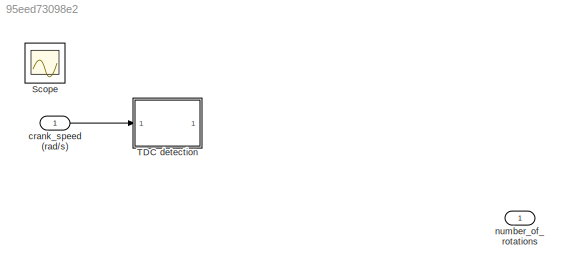
MODEL slx_95eed73098e2
KIND model
CONFIG AbsTol = auto
CONFIG EnableMultiTasking = on
CONFIG FixedStep = auto
CONFIG MaxStep = auto
CONFIG MinStep = auto
CONFIG PreLoadFcn = load crankSpeedData
CONFIG RelTol = 1e-3
CONFIG SampleTimeConstraint = Unconstrained
CONFIG Solver = ode45
CONFIG SolverName = ode45
CONFIG StartTime = 0.0
CONFIG StopTime = 10.0
BLOCK [Scope] Scope
  Floating = off
  IOType = viewer
  NumInputPorts = 1
  Ports = []
  ScopeSpecificationString = Simulink.scopes.TimeScopeBlockCfg('CurrentConfiguration', extmgr.ConfigurationSet(extmgr.Configuration('Core','General UI',true),extmgr.Configuration('Core','Source UI',true),extmgr.Configuration('Sources','WiredSimulink',true,'DataLoggingMaxPoints','7500','DataLoggingLimitDataPoints',true,'DataLoggingSaveFormat','Array','DataLoggingDecimation','1','DataLoggingDecimateData',true),extmgr.Configurat...<+1829ch>
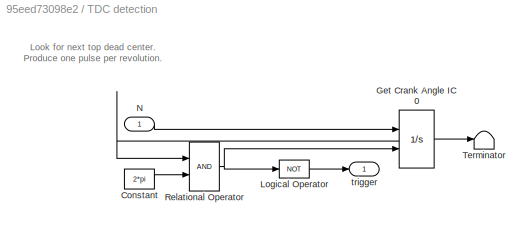
BLOCK [SubSystem] TDC detection
  Ports = [1, 1]
  RequestExecContextInheritance = off
BLOCK [Constant] TDC detection/Constant
  Value = 2*pi
BLOCK [Integrator] TDC detection/Get Crank Angle IC 0
  ExternalReset = rising
  Ports = [2, 1, 0, 0, 1]
  ShowStatePort = on
BLOCK [Logic] TDC detection/Logical Operator
  AllPortsSameDT = off
  Operator = NOT
  OutDataTypeStr = boolean
  Ports = [1, 1]
BLOCK [Inport] TDC detection/N
  IconDisplay = Port number
BLOCK [RelationalOperator] TDC detection/Relational Operator
  Ports = [2, 1]
BLOCK [Terminator] TDC detection/Terminator
BLOCK [Outport] TDC detection/trigger
  IconDisplay = Port number
  InitialOutput = 0
BLOCK [Inport] crank_speed (rad//s)
  IconDisplay = Port number
BLOCK [Outport] number_of_rotations
  IconDisplay = Port number
ANNOTATION TDC detection: Look for next top dead center. Produce one pulse per revolution.
LINE TDC detection/Constant:1 -> TDC detection/Relational Operator:2
LINE TDC detection/Get Crank Angle IC 0:1 -> TDC detection/Terminator:1
LINE TDC detection/Get Crank Angle IC 0:state -> TDC detection/Relational Operator:1
LINE TDC detection/Logical Operator:1 -> TDC detection/trigger:1
LINE TDC detection/N:1 -> TDC detection/Get Crank Angle IC 0:1
NET TDC detection/Relational Operator:1 -> TDC detection/Get Crank Angle IC 0:2, TDC detection/Logical Operator:1
LINE crank_speed (rad//s):1 -> TDC detection:1
note: NET lines group one-source signal fan-out (src -> all destinations, sorted); 1:1 wires keep LINE
